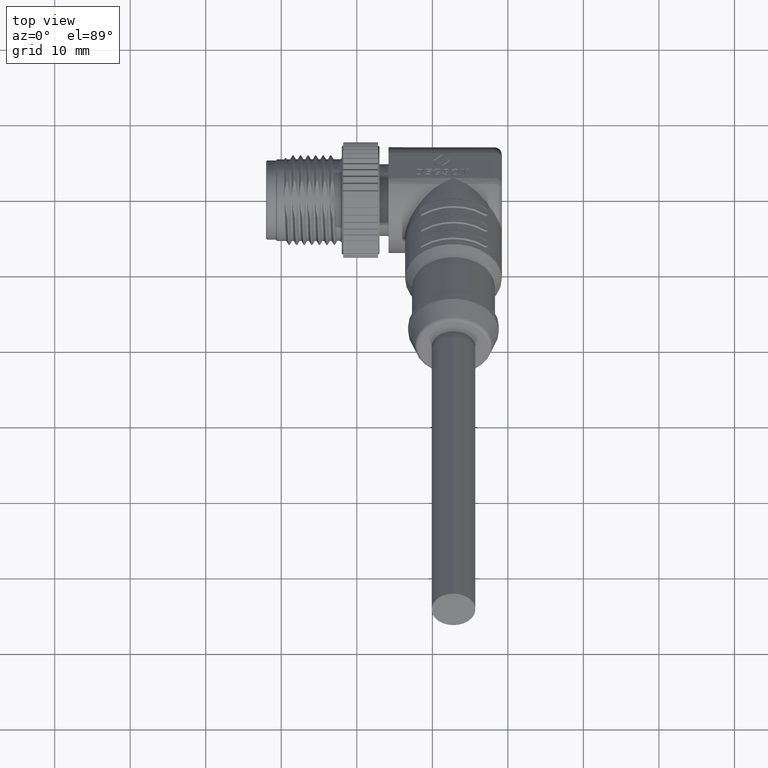
[diagram: clean part render]
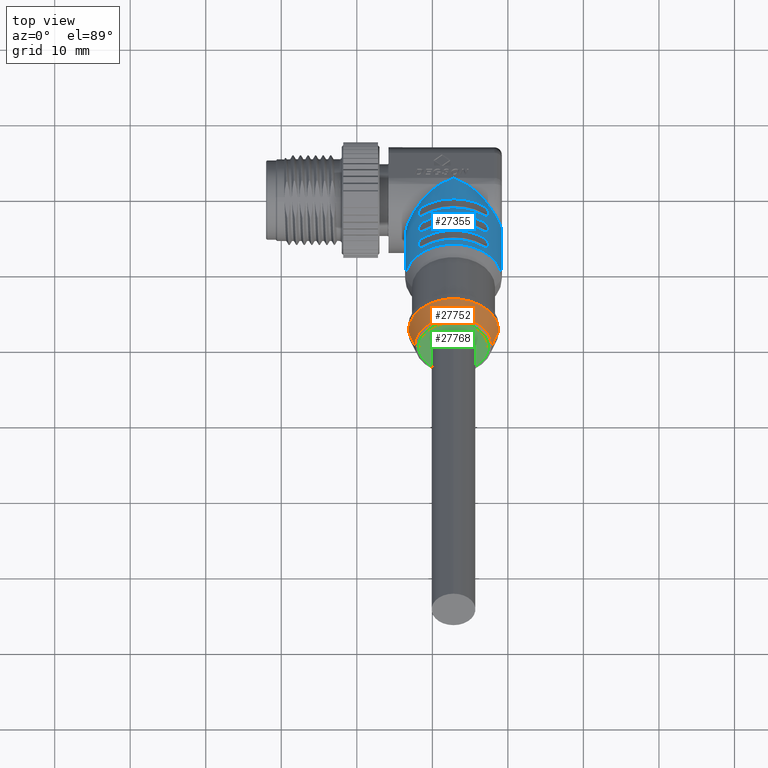
[diagram: same view with three faces highlighted in distinct colors, each labeled with its STEP entity id]
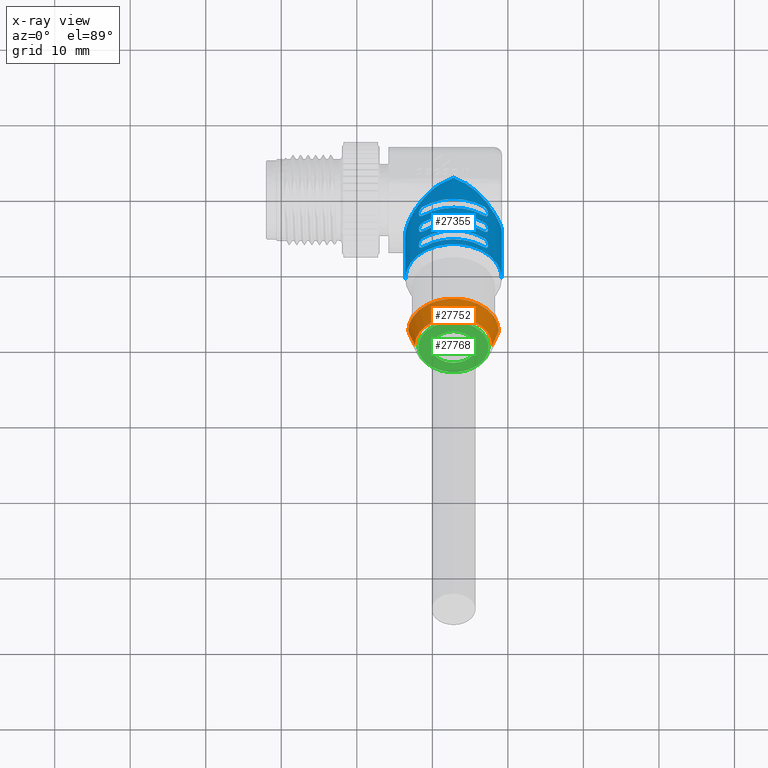
[diagram: x-ray of the same camera — body ghosted, the three highlighted faces saturated]
A machine part, top view with three faces highlighted in distinct colors.
The next image is the same camera in x-ray (body ghosted, the three faces saturated) — at least one of them is partly hidden behind the body in this view.
Their STEP definitions:

[orange] entity #27752 — the highlighted conical surface has half-angle 18.435 deg.
#5961=DIRECTION('',(3.162277660165E-1,-6.708203932500E-1,6.708203932500E-1));
#5962=VECTOR('',#5961,2.801898050152E0);
#5963=CARTESIAN_POINT('',(1.68E1,-1.767766952966E1,1.767766952966E1));
#5964=LINE('',#5963,#5962);
#5975=CARTESIAN_POINT('',(2.28E1,-1.955723988151E1,1.955723988151E1));
#5976=DIRECTION('',(0.E0,7.071067811865E-1,-7.071067811865E-1));
#5977=DIRECTION('',(-1.E0,0.E0,0.E0));
#5978=AXIS2_PLACEMENT_3D('',#5975,#5976,#5977);
#5985=CARTESIAN_POINT('',(2.28E1,-1.767766952966E1,1.767766952966E1));
#5986=DIRECTION('',(0.E0,7.071067811865E-1,-7.071067811865E-1));
#5987=DIRECTION('',(-1.E0,0.E0,0.E0));
#5988=AXIS2_PLACEMENT_3D('',#5985,#5986,#5987);
#5990=DIRECTION('',(-3.162277660165E-1,-6.708203932500E-1,6.708203932500E-1));
#5991=VECTOR('',#5990,2.801898050152E0);
#5992=CARTESIAN_POINT('',(2.88E1,-1.767766952966E1,1.767766952966E1));
#5993=LINE('',#5992,#5991);
#16738=CARTESIAN_POINT('',(2.88E1,-1.767766952966E1,1.767766952966E1));
#16739=VERTEX_POINT('',#16738);
#16740=CARTESIAN_POINT('',(1.68E1,-1.767766952966E1,1.767766952966E1));
#16741=VERTEX_POINT('',#16740);
#16742=CARTESIAN_POINT('',(2.791396203900E1,-1.955723988151E1,
1.955723988151E1));
#16743=CARTESIAN_POINT('',(1.768603796100E1,-1.955723988151E1,
1.955723988151E1));
#16744=VERTEX_POINT('',#16742);
#16745=VERTEX_POINT('',#16743);
#27741=CARTESIAN_POINT('',(2.28E1,-1.861745470558E1,1.861745470558E1));
#27742=DIRECTION('',(0.E0,7.071067811865E-1,-7.071067811865E-1));
#27743=DIRECTION('',(1.E0,0.E0,0.E0));
#27744=AXIS2_PLACEMENT_3D('',#27741,#27742,#27743);
#27745=CONICAL_SURFACE('',#27744,5.556981019497E0,1.843494882292E1);
#27746=ORIENTED_EDGE('',*,*,#27732,.F.);
#27747=ORIENTED_EDGE('',*,*,#27707,.F.);
#27748=ORIENTED_EDGE('',*,*,#27676,.T.);
#27749=ORIENTED_EDGE('',*,*,#27704,.T.);
#27750=EDGE_LOOP('',(#27746,#27747,#27748,#27749));
#27751=FACE_OUTER_BOUND('',#27750,.F.);
#27752=ADVANCED_FACE('',(#27751),#27745,.T.);
#5979=CIRCLE('',#5978,5.113962038995E0);
#5989=CIRCLE('',#5988,6.E0);
#27676=EDGE_CURVE('',#16741,#16739,#5989,.T.);
#27704=EDGE_CURVE('',#16739,#16744,#5993,.T.);
#27707=EDGE_CURVE('',#16741,#16745,#5964,.T.);
#27732=EDGE_CURVE('',#16745,#16744,#5979,.T.);

[blue] entity #27355 — the highlighted cylindrical surface (partial cylindrical patch) has radius 6.4 mm, axis along (0, -0.7071, 0.7071).
#5596=CARTESIAN_POINT('',(1.64E1,-4.949747468306E0,4.949747468306E0));
#5622=CARTESIAN_POINT('',(2.28E1,2.846197837219E0,6.204768961969E0));
#5623=CARTESIAN_POINT('',(2.260151460440E1,2.767739595670E0,6.283227203518E0));
#5624=CARTESIAN_POINT('',(2.220757479550E1,2.599074051225E0,6.426007035427E0));
#5625=CARTESIAN_POINT('',(2.162170556876E1,2.312816615901E0,6.596251063500E0));
#5626=CARTESIAN_POINT('',(2.124750644792E1,2.109225351287E0,6.675556320091E0));
#5627=CARTESIAN_POINT('',(2.106379701677E1,2.004777970267E0,6.706777544916E0));
#5629=CARTESIAN_POINT('',(1.64E1,-4.949747468306E0,4.949747468306E0));
#5630=CARTESIAN_POINT('',(1.64E1,-4.827931044817E0,5.071563891795E0));
#5631=CARTESIAN_POINT('',(1.641396657111E1,-4.574137889324E0,5.307293585280E0));
#5632=CARTESIAN_POINT('',(1.647723214504E1,-4.166760960344E0,5.632933868277E0));
#5633=CARTESIAN_POINT('',(1.658464764698E1,-3.729441777294E0,5.931786176399E0));
#5634=CARTESIAN_POINT('',(1.673810738728E1,-3.263383369469E0,6.200726455192E0));
#5635=CARTESIAN_POINT('',(1.694146317843E1,-2.765735608965E0,6.438522869864E0));
#5636=CARTESIAN_POINT('',(1.719842687284E1,-2.237102887375E0,6.641202973495E0));
#5637=CARTESIAN_POINT('',(1.751452003972E1,-1.676671834866E0,6.804779568384E0));
#5638=CARTESIAN_POINT('',(1.789178657139E1,-1.091405317841E0,6.923190744704E0));
#5639=CARTESIAN_POINT('',(1.833821988772E1,-4.804456477179E-1,
6.992864526576E0));
#5640=CARTESIAN_POINT('',(1.886096882716E1,1.486815749780E-1,7.007553996382E0));
#5641=CARTESIAN_POINT('',(1.942554747293E1,7.421039514982E-1,6.968187692256E0));
#5642=CARTESIAN_POINT('',(2.000154014192E1,1.266186278471E0,6.890340721118E0));
#5643=CARTESIAN_POINT('',(2.056480272646E1,1.699801263725E0,6.794173854118E0));
#5644=CARTESIAN_POINT('',(2.090327097230E1,1.913511426009E0,6.734058777529E0));
#5645=CARTESIAN_POINT('',(2.106379701677E1,2.004777970267E0,6.706777544916E0));
#5647=CARTESIAN_POINT('',(2.453620275285E1,2.004777984803E0,6.706777559452E0));
#5648=CARTESIAN_POINT('',(2.468368408042E1,1.920927981990E0,6.731841852724E0));
#5649=CARTESIAN_POINT('',(2.499442202312E1,1.726298626445E0,6.786820077183E0));
#5650=CARTESIAN_POINT('',(2.551117367118E1,1.336607129292E0,6.875894386991E0));
#5651=CARTESIAN_POINT('',(2.604117740497E1,8.684150644950E-1,6.952035140520E0));
#5652=CARTESIAN_POINT('',(2.656310880557E1,3.401669159204E-1,6.998971498264E0));
#5653=CARTESIAN_POINT('',(2.705605501413E1,-2.250742581677E-1,
7.004241504982E0));
#5654=CARTESIAN_POINT('',(2.750299914801E1,-8.024161787446E-1,
6.961955087234E0));
#5655=CARTESIAN_POINT('',(2.789263978625E1,-1.369765038135E0,6.872232522449E0));
#5656=CARTESIAN_POINT('',(2.810413223308E1,-1.717198428947E0,6.788309478786E0));
#5657=CARTESIAN_POINT('',(2.82E1,-1.883780170271E0,6.741763290868E0));
#5659=CARTESIAN_POINT('',(2.82E1,-1.883780170271E0,6.741763290868E0));
#5660=CARTESIAN_POINT('',(2.830815563019E1,-2.071713547563E0,6.689251039369E0));
#5661=CARTESIAN_POINT('',(2.851651302993E1,-2.431143143633E0,6.537640583257E0));
#5662=CARTESIAN_POINT('',(2.879544098247E1,-2.947491682442E0,6.161198778050E0));
#5663=CARTESIAN_POINT('',(2.899865803546E1,-3.383440766847E0,5.707863981116E0));
#5664=CARTESIAN_POINT('',(2.915694458468E1,-3.833000121277E0,5.080893415507E0));
#5665=CARTESIAN_POINT('',(2.92E1,-4.112730708837E0,4.542392664115E0));
#5666=CARTESIAN_POINT('',(2.92E1,-4.242644279019E0,4.242637688462E0));
#5668=CARTESIAN_POINT('',(2.677308603672E1,-2.179707310345E0,9.275422544877E0));
#5669=CARTESIAN_POINT('',(2.684339414546E1,-2.219074739544E0,9.236055081701E0));
#5670=CARTESIAN_POINT('',(2.697450798927E1,-2.276410402966E0,9.139955458350E0));
#5671=CARTESIAN_POINT('',(2.715201534243E1,-2.303483241538E0,8.942131867893E0));
#5672=CARTESIAN_POINT('',(2.728847324579E1,-2.261795175178E0,8.714967042505E0));
#5673=CARTESIAN_POINT('',(2.737533743782E1,-2.151777467120E0,8.480813370893E0));
#5674=CARTESIAN_POINT('',(2.740447662142E1,-1.981435933531E0,8.267667968174E0));
#5675=CARTESIAN_POINT('',(2.737416248949E1,-1.767912147268E0,8.098659548369E0));
#5676=CARTESIAN_POINT('',(2.728675357152E1,-1.534741762777E0,7.990307548318E0));
#5677=CARTESIAN_POINT('',(2.715070147751E1,-1.309330144211E0,7.949673649043E0));
#5678=CARTESIAN_POINT('',(2.697419424067E1,-1.112907764093E0,7.976809021226E0));
#5679=CARTESIAN_POINT('',(2.684332109524E1,-1.016952342712E0,8.034014490517E0));
#5680=CARTESIAN_POINT('',(2.677308603673E1,-9.776257823280E-1,
8.073341016860E0));
#5682=CARTESIAN_POINT('',(1.882691396328E1,-9.776257823282E-1,
8.073341016860E0));
#5683=CARTESIAN_POINT('',(1.875660585423E1,-1.016993245692E0,8.033973587495E0));
#5684=CARTESIAN_POINT('',(1.862549201007E1,-1.113092869459E0,7.976637924035E0));
#5685=CARTESIAN_POINT('',(1.844798465751E1,-1.310916459510E0,7.949565085766E0));
#5686=CARTESIAN_POINT('',(1.831152675468E1,-1.538081283889E0,7.991253151858E0));
#5687=CARTESIAN_POINT('',(1.822466256268E1,-1.772234954582E0,8.101270859083E0));
#5688=CARTESIAN_POINT('',(1.819552337860E1,-1.985380357190E0,8.271612391860E0));
#5689=CARTESIAN_POINT('',(1.822583750990E1,-2.154388777429E0,8.485136177648E0));
#5690=CARTESIAN_POINT('',(1.831324642743E1,-2.262740778228E0,8.718306562306E0));
#5691=CARTESIAN_POINT('',(1.844929852124E1,-2.303374678170E0,8.943718181372E0));
#5692=CARTESIAN_POINT('',(1.862580575853E1,-2.276239306294E0,9.140140562480E0));
#5693=CARTESIAN_POINT('',(1.875667890444E1,-2.219033836863E0,9.236095984315E0));
#5694=CARTESIAN_POINT('',(1.882691396328E1,-2.179707310345E0,9.275422544877E0));
#5696=CARTESIAN_POINT('',(2.677308603673E1,-4.301027653905E0,1.139674288844E1));
#5697=CARTESIAN_POINT('',(2.684339414564E1,-4.340395083200E0,1.135737542515E1));
#5698=CARTESIAN_POINT('',(2.697450798977E1,-4.397730746729E0,1.126127580152E1));
#5699=CARTESIAN_POINT('',(2.715201534331E1,-4.424803585121E0,1.106345221033E1));
#5700=CARTESIAN_POINT('',(2.728847324669E1,-4.383115518200E0,1.083628738426E1));
#5701=CARTESIAN_POINT('',(2.737533743840E1,-4.273097809375E0,1.060213371232E1));
#5702=CARTESIAN_POINT('',(2.740447662142E1,-4.102756275141E0,1.038898830979E1));
#5703=CARTESIAN_POINT('',(2.737416248889E1,-3.889232488599E0,1.021997989057E1));
#5704=CARTESIAN_POINT('',(2.728675357054E1,-3.656062104381E0,1.011162789129E1));
#5705=CARTESIAN_POINT('',(2.715070147650E1,-3.430650486482E0,1.007099399263E1));
#5706=CARTESIAN_POINT('',(2.697419424005E1,-3.234228107152E0,1.009812936503E1));
#5707=CARTESIAN_POINT('',(2.684332109500E1,-3.138272686133E0,1.015533483421E1));
#5708=CARTESIAN_POINT('',(2.677308603672E1,-3.098946125888E0,1.019466136042E1));
#5710=CARTESIAN_POINT('',(1.882691396328E1,-3.098946125889E0,1.019466136042E1));
#5711=CARTESIAN_POINT('',(1.875660585450E1,-3.138313589088E0,1.015529393119E1));
#5712=CARTESIAN_POINT('',(1.862549201060E1,-3.234413212506E0,1.009795826774E1));
#5713=CARTESIAN_POINT('',(1.844798465721E1,-3.432236803311E0,1.007088542921E1));
#5714=CARTESIAN_POINT('',(1.831152675382E1,-3.659401629050E0,1.011257349582E1));
#5715=CARTESIAN_POINT('',(1.822466256201E1,-3.893555300597E0,1.022259120412E1));
#5716=CARTESIAN_POINT('',(1.819552337861E1,-4.106700702958E0,1.039293273764E1));
#5717=CARTESIAN_POINT('',(1.822583751057E1,-4.275709122443E0,1.060645652363E1));
#5718=CARTESIAN_POINT('',(1.831324642844E1,-4.384061122412E0,1.083962690790E1));
#5719=CARTESIAN_POINT('',(1.844929852244E1,-4.424695021725E0,1.106503852649E1));
#5720=CARTESIAN_POINT('',(1.862580575932E1,-4.397559649543E0,1.126146090667E1));
#5721=CARTESIAN_POINT('',(1.875667890476E1,-4.340354180248E0,1.135741632805E1));
#5722=CARTESIAN_POINT('',(1.882691396327E1,-4.301027653906E0,1.139674288844E1));
#5724=CARTESIAN_POINT('',(2.453620275285E1,2.004777984803E0,6.706777559452E0));
#5725=CARTESIAN_POINT('',(2.435240964846E1,2.109272923739E0,6.675542118699E0));
#5726=CARTESIAN_POINT('',(2.397809750351E1,2.312919996497E0,6.596203275225E0));
#5727=CARTESIAN_POINT('',(2.339223170066E1,2.599161169888E0,6.425941485826E0));
#5728=CARTESIAN_POINT('',(2.299840246101E1,2.767772378445E0,6.283194420742E0));
#5729=CARTESIAN_POINT('',(2.28E1,2.846197837219E0,6.204768961969E0));
#5884=DIRECTION('',(2.384759056894E-13,-7.071067811865E-1,7.071067811865E-1));
#5885=VECTOR('',#5884,8.000000000001E0);
#5886=CARTESIAN_POINT('',(1.64E1,-4.949747468306E0,4.949747468306E0));
#5887=LINE('',#5886,#5885);
#5888=DIRECTION('',(2.115838467325E-13,7.071064150444E-1,-7.071071473285E-1));
#5889=VECTOR('',#5888,8.999999580517E0);
#5890=CARTESIAN_POINT('',(2.92E1,-1.060660171780E1,1.060660171780E1));
#5891=LINE('',#5890,#5889);
#5915=CARTESIAN_POINT('',(2.28E1,-1.060660171780E1,1.060660171780E1));
#5916=DIRECTION('',(0.E0,7.071067811865E-1,-7.071067811865E-1));
#5917=DIRECTION('',(-1.E0,0.E0,0.E0));
#5918=AXIS2_PLACEMENT_3D('',#5915,#5916,#5917);
#6544=CARTESIAN_POINT('',(2.28E1,-5.727564927611E0,5.727564927611E0));
#6545=DIRECTION('',(0.E0,-7.071067811865E-1,7.071067811865E-1));
#6546=DIRECTION('',(6.207946932378E-1,5.543527526981E-1,5.543527526981E-1));
#6547=AXIS2_PLACEMENT_3D('',#6544,#6545,#6546);
#6559=CARTESIAN_POINT('',(2.28E1,-4.525483399594E0,4.525483399594E0));
#6560=DIRECTION('',(0.E0,7.071067811865E-1,-7.071067811865E-1));
#6561=DIRECTION('',(-6.207946932380E-1,5.543527526979E-1,5.543527526979E-1));
#6562=AXIS2_PLACEMENT_3D('',#6559,#6560,#6561);
#6623=CARTESIAN_POINT('',(2.28E1,-7.848885271171E0,7.848885271171E0));
#6624=DIRECTION('',(0.E0,-7.071067811865E-1,7.071067811865E-1));
#6625=DIRECTION('',(6.207946932387E-1,5.543527526976E-1,5.543527526976E-1));
#6626=AXIS2_PLACEMENT_3D('',#6623,#6624,#6625);
#6671=CARTESIAN_POINT('',(2.28E1,-6.646803743154E0,6.646803743154E0));
#6672=DIRECTION('',(0.E0,7.071067811865E-1,-7.071067811865E-1));
#6673=DIRECTION('',(-6.207946932383E-1,5.543527526978E-1,5.543527526978E-1));
#6674=AXIS2_PLACEMENT_3D('',#6671,#6672,#6673);
#6681=CARTESIAN_POINT('',(2.28E1,-8.768124086713E0,8.768124086713E0));
#6682=DIRECTION('',(0.E0,7.071067811865E-1,-7.071067811865E-1));
#6683=DIRECTION('',(-6.207946932372E-1,5.543527526984E-1,5.543527526984E-1));
#6684=AXIS2_PLACEMENT_3D('',#6681,#6682,#6683);
#6740=CARTESIAN_POINT('',(2.28E1,-9.970205614730E0,9.970205614730E0));
#6741=DIRECTION('',(0.E0,-7.071067811865E-1,7.071067811865E-1));
#6742=DIRECTION('',(6.207946932397E-1,5.543527526969E-1,5.543527526969E-1));
#6743=AXIS2_PLACEMENT_3D('',#6740,#6741,#6742);
#6750=CARTESIAN_POINT('',(2.677308603672E1,-5.220266469446E0,1.231598170398E1));
#6751=CARTESIAN_POINT('',(2.684333373783E1,-5.259600108769E0,1.227664809871E1));
#6752=CARTESIAN_POINT('',(2.697434425475E1,-5.355607041936E0,1.221934593656E1));
#6753=CARTESIAN_POINT('',(2.715170341289E1,-5.553162275987E0,1.219221665643E1));
#6754=CARTESIAN_POINT('',(2.728814374332E1,-5.780067849884E0,1.223369947118E1));
#6755=CARTESIAN_POINT('',(2.737513106141E1,-6.014100091562E0,1.234343679923E1));
#6756=CARTESIAN_POINT('',(2.740448088381E1,-6.227342641879E0,1.251356836555E1));
#6757=CARTESIAN_POINT('',(2.737436171883E1,-6.396605396891E0,1.272706279608E1));
#6758=CARTESIAN_POINT('',(2.728700969369E1,-6.505257344471E0,1.296046791666E1));
#6759=CARTESIAN_POINT('',(2.715081710906E1,-6.546044478101E0,1.318624323198E1));
#6760=CARTESIAN_POINT('',(2.697410253507E1,-6.518859345784E0,1.338287533655E1));
#6761=CARTESIAN_POINT('',(2.684326996188E1,-6.461645892876E0,1.347876530265E1));
#6762=CARTESIAN_POINT('',(2.677308603673E1,-6.422347997467E0,1.351806323199E1));
#6774=CARTESIAN_POINT('',(1.882691396327E1,-6.422347997466E0,1.351806323200E1));
#6775=CARTESIAN_POINT('',(1.875666626164E1,-6.461681603031E0,1.347872959237E1));
#6776=CARTESIAN_POINT('',(1.862565574398E1,-6.518983765338E0,1.338272265843E1));
#6777=CARTESIAN_POINT('',(1.844829658587E1,-6.546113044955E0,1.318516742377E1));
#6778=CARTESIAN_POINT('',(1.831185625586E1,-6.504630229696E0,1.295826184984E1));
#6779=CARTESIAN_POINT('',(1.822486893814E1,-6.394892901174E0,1.272422960819E1));
#6780=CARTESIAN_POINT('',(1.819551911618E1,-6.224761334323E0,1.251098705798E1));
#6781=CARTESIAN_POINT('',(1.822563828168E1,-6.011266903359E0,1.234172430330E1));
#6782=CARTESIAN_POINT('',(1.831299030733E1,-5.777861782692E0,1.223307235630E1));
#6783=CARTESIAN_POINT('',(1.844918289224E1,-5.552086467748E0,1.219228522333E1));
#6784=CARTESIAN_POINT('',(1.862589746599E1,-5.355454364010E0,1.221947035604E1));
#6785=CARTESIAN_POINT('',(1.875673003855E1,-5.259564398566E0,1.227668380882E1));
#6786=CARTESIAN_POINT('',(1.882691396328E1,-5.220266469446E0,1.231598170398E1));
#16177=CARTESIAN_POINT('',(2.28E1,2.846197837219E0,6.204768961969E0));
#16178=VERTEX_POINT('',#16177);
#16673=VERTEX_POINT('',#5596);
#16674=CARTESIAN_POINT('',(1.64E1,-1.060660171780E1,1.060660171780E1));
#16675=VERTEX_POINT('',#16674);
#16676=CARTESIAN_POINT('',(2.92E1,-1.060660171780E1,1.060660171780E1));
#16677=VERTEX_POINT('',#16676);
#16678=CARTESIAN_POINT('',(2.92E1,-4.242644279019E0,4.242637688462E0));
#16679=VERTEX_POINT('',#16678);
#16701=CARTESIAN_POINT('',(2.106379701677E1,2.004777970267E0,6.706777544916E0));
#16702=VERTEX_POINT('',#16701);
#16703=VERTEX_POINT('',#5724);
#16704=VERTEX_POINT('',#5657);
#16705=VERTEX_POINT('',#5668);
#16706=VERTEX_POINT('',#5680);
#16707=CARTESIAN_POINT('',(1.882691396328E1,-9.776257823273E-1,
8.073341016861E0));
#16708=VERTEX_POINT('',#16707);
#16709=VERTEX_POINT('',#5694);
#16710=VERTEX_POINT('',#5696);
#16711=VERTEX_POINT('',#5708);
#16712=CARTESIAN_POINT('',(1.882691396328E1,-3.098946125888E0,
1.019466136042E1));
#16713=VERTEX_POINT('',#16712);
#16714=VERTEX_POINT('',#5722);
#16715=CARTESIAN_POINT('',(1.882691396328E1,-5.220266469443E0,
1.231598170398E1));
#16716=CARTESIAN_POINT('',(2.677308603672E1,-5.220266469443E0,
1.231598170398E1));
#16717=VERTEX_POINT('',#16715);
#16718=VERTEX_POINT('',#16716);
#16719=VERTEX_POINT('',#6774);
#16720=CARTESIAN_POINT('',(2.677308603673E1,-6.422347997470E0,
1.351806323199E1));
#16721=VERTEX_POINT('',#16720);
#27304=CARTESIAN_POINT('',(2.28E1,9.899494936612E-1,-9.899494936612E-1));
#27305=DIRECTION('',(0.E0,-7.071067811865E-1,7.071067811865E-1));
#27306=DIRECTION('',(-1.E0,0.E0,0.E0));
#27307=AXIS2_PLACEMENT_3D('',#27304,#27305,#27306);
#27308=CYLINDRICAL_SURFACE('',#27307,6.4E0);
#27309=ORIENTED_EDGE('',*,*,#27282,.T.);
#27310=ORIENTED_EDGE('',*,*,#27298,.F.);
#27312=ORIENTED_EDGE('',*,*,#27311,.F.);
#27314=ORIENTED_EDGE('',*,*,#27313,.T.);
#27316=ORIENTED_EDGE('',*,*,#27315,.T.);
#27318=ORIENTED_EDGE('',*,*,#27317,.F.);
#27320=ORIENTED_EDGE('',*,*,#27319,.F.);
#27322=ORIENTED_EDGE('',*,*,#27321,.F.);
#27323=EDGE_LOOP('',(#27309,#27310,#27312,#27314,#27316,#27318,#27320,#27322));
#27324=FACE_OUTER_BOUND('',#27323,.F.);
#27326=ORIENTED_EDGE('',*,*,#27325,.T.);
#27328=ORIENTED_EDGE('',*,*,#27327,.F.);
#27330=ORIENTED_EDGE('',*,*,#27329,.T.);
#27332=ORIENTED_EDGE('',*,*,#27331,.F.);
#27333=EDGE_LOOP('',(#27326,#27328,#27330,#27332));
#27334=FACE_BOUND('',#27333,.F.);
#27336=ORIENTED_EDGE('',*,*,#27335,.T.);
#27338=ORIENTED_EDGE('',*,*,#27337,.F.);
#27340=ORIENTED_EDGE('',*,*,#27339,.T.);
#27342=ORIENTED_EDGE('',*,*,#27341,.F.);
#27343=EDGE_LOOP('',(#27336,#27338,#27340,#27342));
#27344=FACE_BOUND('',#27343,.F.);
#27346=ORIENTED_EDGE('',*,*,#27345,.F.);
#27348=ORIENTED_EDGE('',*,*,#27347,.F.);
#27350=ORIENTED_EDGE('',*,*,#27349,.F.);
#27352=ORIENTED_EDGE('',*,*,#27351,.F.);
#27353=EDGE_LOOP('',(#27346,#27348,#27350,#27352));
#27354=FACE_BOUND('',#27353,.F.);
#27355=ADVANCED_FACE('',(#27324,#27334,#27344,#27354),#27308,.T.);
#5628=B_SPLINE_CURVE_WITH_KNOTS('',3,(#5622,#5623,#5624,#5625,#5626,#5627),
.UNSPECIFIED.,.F.,.F.,(4,1,1,4),(0.E0,3.333333333333E-1,6.666666666667E-1,1.E0),
.UNSPECIFIED.);
#5646=B_SPLINE_CURVE_WITH_KNOTS('',3,(#5629,#5630,#5631,#5632,#5633,#5634,#5635,
#5636,#5637,#5638,#5639,#5640,#5641,#5642,#5643,#5644,#5645),.UNSPECIFIED.,.F.,
.F.,(4,1,1,1,1,1,1,1,1,1,1,1,1,1,4),(0.E0,7.142857142857E-2,1.428571428571E-1,
2.142857142857E-1,2.857142857143E-1,3.571428571429E-1,4.285714285714E-1,5.E-1,
5.714285714286E-1,6.428571428571E-1,7.142857142857E-1,7.857142857143E-1,
8.571428571429E-1,9.285714285714E-1,1.E0),.UNSPECIFIED.);
#5658=B_SPLINE_CURVE_WITH_KNOTS('',3,(#5647,#5648,#5649,#5650,#5651,#5652,#5653,
#5654,#5655,#5656,#5657),.UNSPECIFIED.,.F.,.F.,(4,1,1,1,1,1,1,1,4),(0.E0,
1.25E-1,2.5E-1,3.75E-1,5.E-1,6.25E-1,7.5E-1,8.75E-1,1.E0),.UNSPECIFIED.);
#5667=B_SPLINE_CURVE_WITH_KNOTS('',3,(#5659,#5660,#5661,#5662,#5663,#5664,#5665,
#5666),.UNSPECIFIED.,.F.,.F.,(4,1,1,1,1,4),(0.E0,2.E-1,4.E-1,6.E-1,8.E-1,1.E0),
.UNSPECIFIED.);
#5681=B_SPLINE_CURVE_WITH_KNOTS('',3,(#5668,#5669,#5670,#5671,#5672,#5673,#5674,
#5675,#5676,#5677,#5678,#5679,#5680),.UNSPECIFIED.,.F.,.F.,(4,1,1,1,1,1,1,1,1,1,
4),(0.E0,1.E-1,2.E-1,3.E-1,4.E-1,5.E-1,6.E-1,7.E-1,8.E-1,9.E-1,1.E0),
.UNSPECIFIED.);
#5695=B_SPLINE_CURVE_WITH_KNOTS('',3,(#5682,#5683,#5684,#5685,#5686,#5687,#5688,
#5689,#5690,#5691,#5692,#5693,#5694),.UNSPECIFIED.,.F.,.F.,(4,1,1,1,1,1,1,1,1,1,
4),(0.E0,1.E-1,2.E-1,3.E-1,4.E-1,5.E-1,6.E-1,7.E-1,8.E-1,9.E-1,1.E0),
.UNSPECIFIED.);
#5709=B_SPLINE_CURVE_WITH_KNOTS('',3,(#5696,#5697,#5698,#5699,#5700,#5701,#5702,
#5703,#5704,#5705,#5706,#5707,#5708),.UNSPECIFIED.,.F.,.F.,(4,1,1,1,1,1,1,1,1,1,
4),(0.E0,1.E-1,2.E-1,3.E-1,4.E-1,5.E-1,6.E-1,7.E-1,8.E-1,9.E-1,1.E0),
.UNSPECIFIED.);
#5723=B_SPLINE_CURVE_WITH_KNOTS('',3,(#5710,#5711,#5712,#5713,#5714,#5715,#5716,
#5717,#5718,#5719,#5720,#5721,#5722),.UNSPECIFIED.,.F.,.F.,(4,1,1,1,1,1,1,1,1,1,
4),(0.E0,1.E-1,2.E-1,3.E-1,4.E-1,5.E-1,6.E-1,7.E-1,8.E-1,9.E-1,1.E0),
.UNSPECIFIED.);
#5730=B_SPLINE_CURVE_WITH_KNOTS('',3,(#5724,#5725,#5726,#5727,#5728,#5729),
.UNSPECIFIED.,.F.,.F.,(4,1,1,4),(0.E0,3.333333333333E-1,6.666666666667E-1,1.E0),
.UNSPECIFIED.);
#5919=CIRCLE('',#5918,6.399999999996E0);
#6548=CIRCLE('',#6547,6.4E0);
#6563=CIRCLE('',#6562,6.4E0);
#6627=CIRCLE('',#6626,6.4E0);
#6675=CIRCLE('',#6674,6.4E0);
#6685=CIRCLE('',#6684,6.4E0);
#6744=CIRCLE('',#6743,6.4E0);
#6763=B_SPLINE_CURVE_WITH_KNOTS('',3,(#6750,#6751,#6752,#6753,#6754,#6755,#6756,
#6757,#6758,#6759,#6760,#6761,#6762),.UNSPECIFIED.,.F.,.F.,(4,1,1,1,1,1,1,1,1,1,
4),(0.E0,1.E-1,2.E-1,3.E-1,4.E-1,5.E-1,6.E-1,7.E-1,8.E-1,9.E-1,1.E0),
.UNSPECIFIED.);
#6787=B_SPLINE_CURVE_WITH_KNOTS('',3,(#6774,#6775,#6776,#6777,#6778,#6779,#6780,
#6781,#6782,#6783,#6784,#6785,#6786),.UNSPECIFIED.,.F.,.F.,(4,1,1,1,1,1,1,1,1,1,
4),(0.E0,1.E-1,2.E-1,3.E-1,4.E-1,5.E-1,6.E-1,7.E-1,8.E-1,9.E-1,1.E0),
.UNSPECIFIED.);
#27282=EDGE_CURVE('',#16673,#16702,#5646,.T.);
#27298=EDGE_CURVE('',#16178,#16702,#5628,.T.);
#27311=EDGE_CURVE('',#16703,#16178,#5730,.T.);
#27313=EDGE_CURVE('',#16703,#16704,#5658,.T.);
#27315=EDGE_CURVE('',#16704,#16679,#5667,.T.);
#27317=EDGE_CURVE('',#16677,#16679,#5891,.T.);
#27319=EDGE_CURVE('',#16675,#16677,#5919,.T.);
#27321=EDGE_CURVE('',#16673,#16675,#5887,.T.);
#27325=EDGE_CURVE('',#16705,#16706,#5681,.T.);
#27327=EDGE_CURVE('',#16708,#16706,#6563,.T.);
#27329=EDGE_CURVE('',#16708,#16709,#5695,.T.);
#27331=EDGE_CURVE('',#16705,#16709,#6548,.T.);
#27335=EDGE_CURVE('',#16710,#16711,#5709,.T.);
#27337=EDGE_CURVE('',#16713,#16711,#6675,.T.);
#27339=EDGE_CURVE('',#16713,#16714,#5723,.T.);
#27341=EDGE_CURVE('',#16710,#16714,#6627,.T.);
#27345=EDGE_CURVE('',#16717,#16718,#6685,.T.);
#27347=EDGE_CURVE('',#16719,#16717,#6787,.T.);
#27349=EDGE_CURVE('',#16721,#16719,#6744,.T.);
#27351=EDGE_CURVE('',#16718,#16721,#6763,.T.);

[green] entity #27768 — the highlighted planar face has unit normal (0, -0.7071, 0.7071).
#5994=CARTESIAN_POINT('',(2.28E1,-1.979898987322E1,1.979898987322E1));
#5995=DIRECTION('',(0.E0,7.071067811865E-1,-7.071067811865E-1));
#5996=DIRECTION('',(1.E0,0.E0,0.E0));
#5997=AXIS2_PLACEMENT_3D('',#5994,#5995,#5996);
#5999=CARTESIAN_POINT('',(2.28E1,-1.979898987322E1,1.979898987322E1));
#6000=DIRECTION('',(0.E0,7.071067811865E-1,-7.071067811865E-1));
#6001=DIRECTION('',(-9.999999957220E-1,-6.540607196241E-5,-6.540607196241E-5));
#6002=AXIS2_PLACEMENT_3D('',#5999,#6000,#6001);
#6004=CARTESIAN_POINT('',(2.28E1,-1.979898987322E1,1.979898987322E1));
#6005=DIRECTION('',(0.E0,-7.071067811865E-1,7.071067811865E-1));
#6006=DIRECTION('',(0.E0,-7.071067811865E-1,-7.071067811865E-1));
#6007=AXIS2_PLACEMENT_3D('',#6004,#6005,#6006);
#6009=CARTESIAN_POINT('',(2.28E1,-1.979898987322E1,1.979898987322E1));
#6010=DIRECTION('',(0.E0,-7.071067811865E-1,7.071067811865E-1));
#6011=DIRECTION('',(0.E0,7.071067811865E-1,7.071067811865E-1));
#6012=AXIS2_PLACEMENT_3D('',#6009,#6010,#6011);
#16746=CARTESIAN_POINT('',(1.816037961003E1,-1.979898987322E1,
1.979898987322E1));
#16747=VERTEX_POINT('',#16746);
#16748=CARTESIAN_POINT('',(2.743962038997E1,-1.979898987322E1,
1.979898987322E1));
#16749=VERTEX_POINT('',#16748);
#19835=CARTESIAN_POINT('',(2.28E1,-2.184959953866E1,1.774838020778E1));
#19836=CARTESIAN_POINT('',(2.28E1,-1.774838020778E1,2.184959953866E1));
#19837=VERTEX_POINT('',#19835);
#19838=VERTEX_POINT('',#19836);
#27753=CARTESIAN_POINT('',(2.28E1,-1.979898987322E1,1.979898987322E1));
#27754=DIRECTION('',(0.E0,-7.071067811865E-1,7.071067811865E-1));
#27755=DIRECTION('',(-1.E0,0.E0,0.E0));
#27756=AXIS2_PLACEMENT_3D('',#27753,#27754,#27755);
#27757=PLANE('',#27756);
#27758=ORIENTED_EDGE('',*,*,#27720,.T.);
#27759=ORIENTED_EDGE('',*,*,#27735,.T.);
#27760=EDGE_LOOP('',(#27758,#27759));
#27761=FACE_OUTER_BOUND('',#27760,.F.);
#27763=ORIENTED_EDGE('',*,*,#27762,.T.);
#27765=ORIENTED_EDGE('',*,*,#27764,.T.);
#27766=EDGE_LOOP('',(#27763,#27765));
#27767=FACE_BOUND('',#27766,.F.);
#27768=ADVANCED_FACE('',(#27761,#27767),#27757,.T.);
#5998=CIRCLE('',#5997,4.639620389972E0);
#6003=CIRCLE('',#6002,4.639620389972E0);
#6008=CIRCLE('',#6007,2.9E0);
#6013=CIRCLE('',#6012,2.9E0);
#27720=EDGE_CURVE('',#16749,#16747,#5998,.T.);
#27735=EDGE_CURVE('',#16747,#16749,#6003,.T.);
#27762=EDGE_CURVE('',#19837,#19838,#6008,.T.);
#27764=EDGE_CURVE('',#19838,#19837,#6013,.T.);